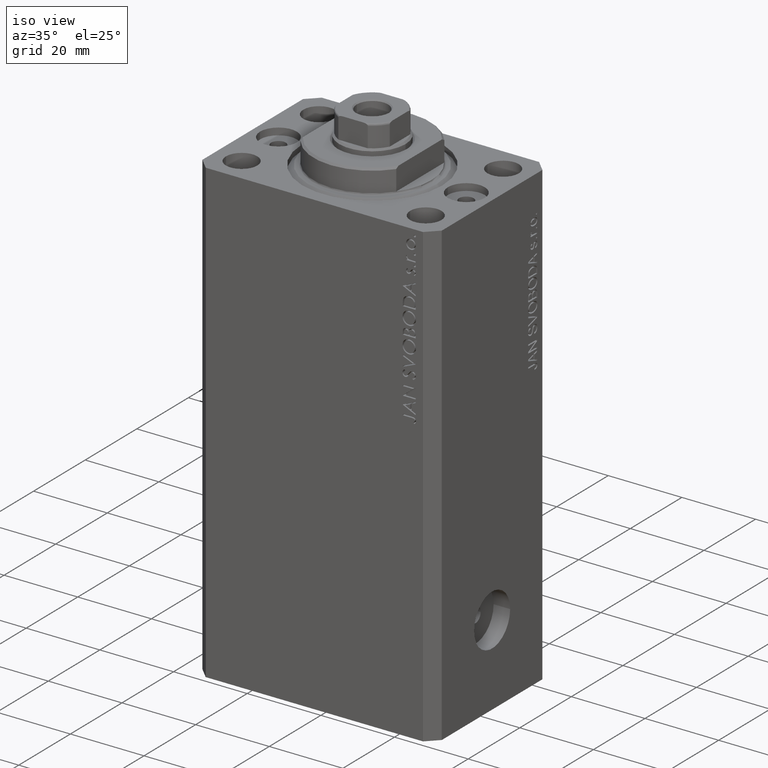
[diagram: clean part render]
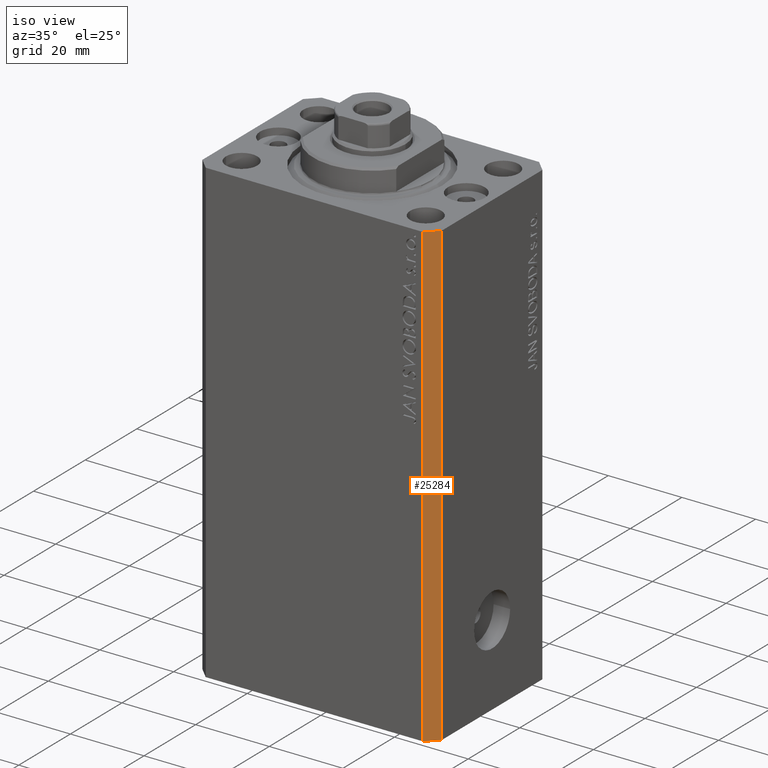
[diagram: same view with one face highlighted and labeled with its STEP entity id]
A machine part, iso view. The second image highlights one B-rep face of the part: STEP entity #25284.
In plain terms, the highlighted planar face has unit normal (0.7071, -0.7071, 0).
Its self-contained STEP definition (entity closure, byte-faithful):
#549 = CARTESIAN_POINT ( 'NONE',  ( 32.49999999999651124, -19.49999999999949196, -125.0000000000000000 ) ) ;
#2486 = VERTEX_POINT ( 'NONE', #549 ) ;
#3074 = AXIS2_PLACEMENT_3D ( 'NONE', #25808, #7423, #18657 ) ;
#5225 = VECTOR ( 'NONE', #22536, 1000.000000000000000 ) ;
#5967 = CARTESIAN_POINT ( 'NONE',  ( 29.49999999999650413, -22.49999999999949196, 0.000000000000000000 ) ) ;
#6332 = EDGE_CURVE ( 'NONE', #2486, #24174, #40683, .T. ) ;
#7341 = ORIENTED_EDGE ( 'NONE', *, *, #38135, .T. ) ;
#7423 = DIRECTION ( 'NONE',  ( 0.7071067811865466846, -0.7071067811865483499, 0.000000000000000000 ) ) ;
#7819 = LINE ( 'NONE', #15461, #9286 ) ;
#7972 = CARTESIAN_POINT ( 'NONE',  ( 32.49999999999651124, -19.49999999999949196, -125.0000000000000000 ) ) ;
#9286 = VECTOR ( 'NONE', #11848, 1000.000000000000000 ) ;
#11848 = DIRECTION ( 'NONE',  ( 0.7071067811865483499, 0.7071067811865466846, 0.000000000000000000 ) ) ;
#12318 = ORIENTED_EDGE ( 'NONE', *, *, #6332, .T. ) ;
#13800 = EDGE_CURVE ( 'NONE', #37093, #24174, #7819, .T. ) ;
#14197 = EDGE_CURVE ( 'NONE', #45774, #37093, #37475, .T. ) ;
#14988 = DIRECTION ( 'NONE',  ( 0.7071067811865483499, 0.7071067811865466846, 0.000000000000000000 ) ) ;
#15461 = CARTESIAN_POINT ( 'NONE',  ( 29.49999999999650413, -22.49999999999949196, 0.000000000000000000 ) ) ;
#16866 = CARTESIAN_POINT ( 'NONE',  ( 32.49999999999651124, -19.49999999999949196, 0.000000000000000000 ) ) ;
#17022 = CARTESIAN_POINT ( 'NONE',  ( 29.49999999999650413, -22.49999999999949196, -125.0000000000000000 ) ) ;
#18647 = DIRECTION ( 'NONE',  ( 0.000000000000000000, 0.000000000000000000, 1.000000000000000000 ) ) ;
#18657 = DIRECTION ( 'NONE',  ( 0.7071067811865483499, 0.7071067811865466846, 0.000000000000000000 ) ) ;
#22536 = DIRECTION ( 'NONE',  ( 0.000000000000000000, 0.000000000000000000, 1.000000000000000000 ) ) ;
#24174 = VERTEX_POINT ( 'NONE', #16866 ) ;
#25284 = ADVANCED_FACE ( 'NONE', ( #47043 ), #40128, .T. ) ;
#25721 = CARTESIAN_POINT ( 'NONE',  ( 29.49999999999650413, -22.49999999999949196, -125.0000000000000000 ) ) ;
#25808 = CARTESIAN_POINT ( 'NONE',  ( 29.49999999999650413, -22.49999999999949196, -125.0000000000000000 ) ) ;
#26686 = VECTOR ( 'NONE', #14988, 1000.000000000000000 ) ;
#28057 = EDGE_LOOP ( 'NONE', ( #35305, #31029, #7341, #12318 ) ) ;
#29858 = CARTESIAN_POINT ( 'NONE',  ( 29.49999999999650413, -22.49999999999949196, -125.0000000000000000 ) ) ;
#31029 = ORIENTED_EDGE ( 'NONE', *, *, #14197, .F. ) ;
#35305 = ORIENTED_EDGE ( 'NONE', *, *, #13800, .F. ) ;
#37093 = VERTEX_POINT ( 'NONE', #5967 ) ;
#37475 = LINE ( 'NONE', #29858, #38298 ) ;
#38135 = EDGE_CURVE ( 'NONE', #45774, #2486, #43853, .T. ) ;
#38298 = VECTOR ( 'NONE', #18647, 1000.000000000000000 ) ;
#40128 = PLANE ( 'NONE',  #3074 ) ;
#40683 = LINE ( 'NONE', #7972, #5225 ) ;
#43853 = LINE ( 'NONE', #25721, #26686 ) ;
#45774 = VERTEX_POINT ( 'NONE', #17022 ) ;
#47043 = FACE_OUTER_BOUND ( 'NONE', #28057, .T. ) ;